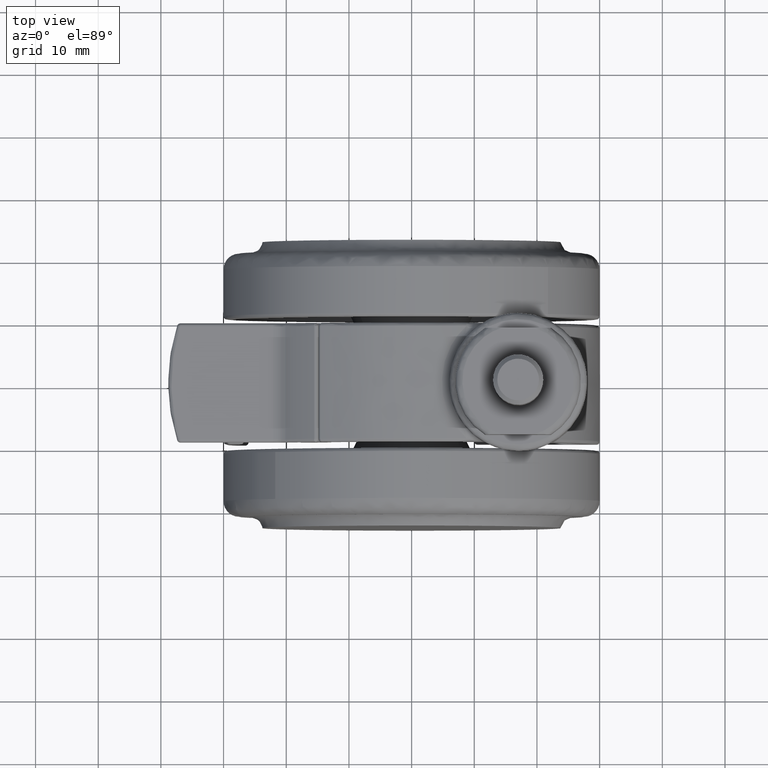
[diagram: clean part render]
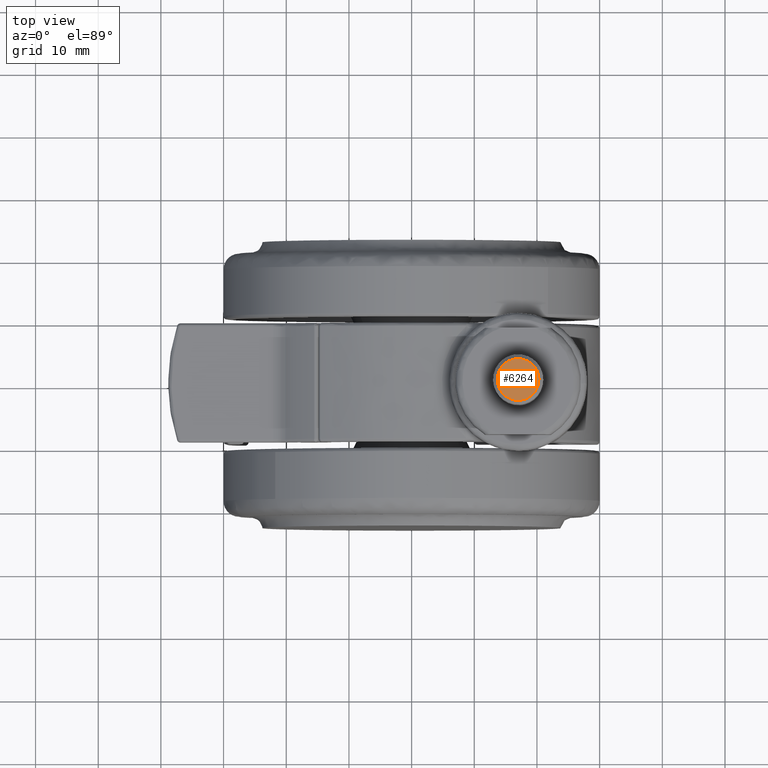
[diagram: same view with one face highlighted and labeled with its STEP entity id]
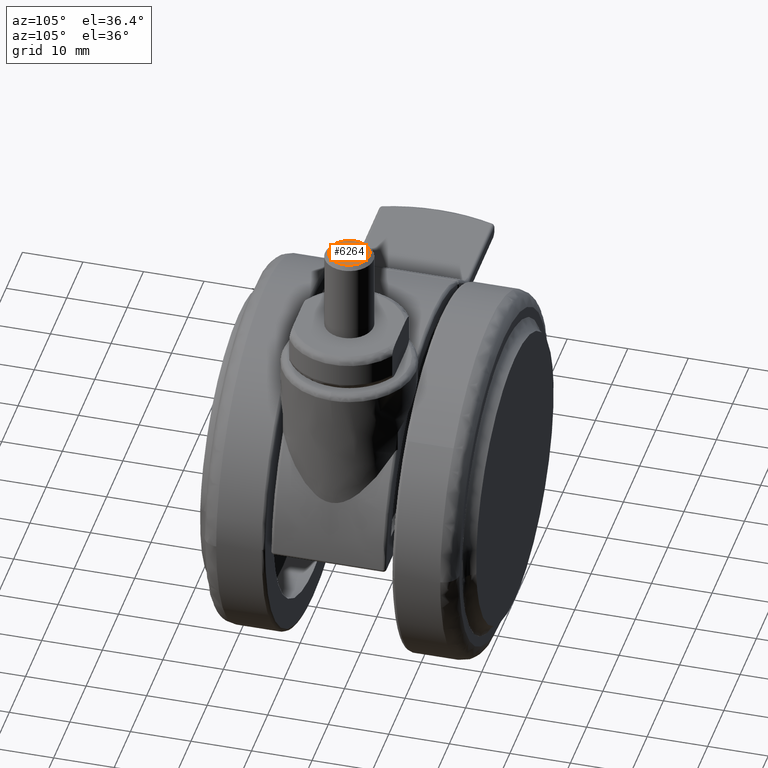
[diagram: same view with one face highlighted and labeled with its STEP entity id]
A machine part, top view. The second image highlights one B-rep face of the part: STEP entity #6264.
A second angle (auxiliary view) of the same face is appended — the face is thin or edge-on in the first view.
In plain terms, the highlighted face is a freeform B-spline surface patch.
Its self-contained STEP definition (entity closure, byte-faithful):
#6193=CARTESIAN_POINT('',(13.344482362883220,-3.655435787324527,52.500000000000000));
#6194=CARTESIAN_POINT('',(20.655517815403218,-3.655435787324527,52.500000000000000));
#6195=CARTESIAN_POINT('',(13.344482362883220,3.655435727895773,52.500000000000000));
#6196=CARTESIAN_POINT('',(20.655517815403218,3.655435727895773,52.500000000000000));
#6197=B_SPLINE_SURFACE_WITH_KNOTS('',1,1,((#6193,#6195),(#6194,#6196)),.UNSPECIFIED.,.F.,.F.,.U.,(2,2),(2,2),(0.0,7.311035452520006),(0.0,7.310871515220300),.UNSPECIFIED.);
#6198=CARTESIAN_POINT('',(17.202894821712441,-3.317301002594804,52.499999999925578));
#6199=VERTEX_POINT('',#6198);
#6200=CARTESIAN_POINT('',(13.676500000000040,2.842171E-014,52.500000000000000));
#6201=VERTEX_POINT('',#6200);
#6202=CARTESIAN_POINT('',(17.202894821712441,-3.317301002594804,52.499999999925571));
#6203=CARTESIAN_POINT('',(17.101542109110031,-3.323500000073146,52.499999999926658));
#6204=CARTESIAN_POINT('',(17.000000000004409,-3.323500000072011,52.499999999927788));
#6205=CARTESIAN_POINT('',(13.676500000002173,-3.323500000034873,52.499999999964999));
#6206=CARTESIAN_POINT('',(13.676500000000040,2.842171E-014,52.500000000000000));
#6214=(BOUNDED_CURVE()B_SPLINE_CURVE(2,(#6202,#6203,#6204,#6205,#6206),.UNSPECIFIED.,.F.,.U.)B_SPLINE_CURVE_WITH_KNOTS((3,2,3),(0.739332962212643,0.750000000000000,1.0),.UNSPECIFIED.)CURVE()GEOMETRIC_REPRESENTATION_ITEM()RATIONAL_B_SPLINE_CURVE((0.976072041610352,0.987502787869025,1.0,0.707106781186547,1.0))REPRESENTATION_ITEM(''));
#6215=EDGE_CURVE('',#6199,#6201,#6214,.T.);
#6216=ORIENTED_EDGE('',*,*,#6215,.F.);
#6217=CARTESIAN_POINT('',(20.323499999999971,2.842171E-014,52.500000000000000));
#6218=VERTEX_POINT('',#6217);
#6219=CARTESIAN_POINT('',(20.323499999999971,2.842171E-014,52.500000000000000));
#6220=CARTESIAN_POINT('',(20.323500000002237,-3.126436612865800,52.499999999962796));
#6221=CARTESIAN_POINT('',(17.202894821712441,-3.317301002594804,52.499999999925571));
#6229=(BOUNDED_CURVE()B_SPLINE_CURVE(2,(#6219,#6220,#6221),.UNSPECIFIED.,.F.,.U.)B_SPLINE_CURVE_WITH_KNOTS((3,3),(0.500000000000000,0.739332962212643),.UNSPECIFIED.)CURVE()GEOMETRIC_REPRESENTATION_ITEM()RATIONAL_B_SPLINE_CURVE((1.0,0.719603993317523,0.976072041610352))REPRESENTATION_ITEM(''));
#6230=EDGE_CURVE('',#6218,#6199,#6229,.T.);
#6231=ORIENTED_EDGE('',*,*,#6230,.F.);
#6232=CARTESIAN_POINT('',(16.797105178287559,3.317301002594860,52.499999999925578));
#6233=VERTEX_POINT('',#6232);
#6234=CARTESIAN_POINT('',(16.797105178287556,3.317301002594860,52.499999999925571));
#6235=CARTESIAN_POINT('',(16.898457890889969,3.323500000073201,52.499999999926651));
#6236=CARTESIAN_POINT('',(16.999999999995602,3.323500000072067,52.499999999927780));
#6237=CARTESIAN_POINT('',(20.323499999997825,3.323500000034929,52.499999999964977));
#6238=CARTESIAN_POINT('',(20.323499999999971,2.842171E-014,52.500000000000000));
#6246=(BOUNDED_CURVE()B_SPLINE_CURVE(2,(#6234,#6235,#6236,#6237,#6238),.UNSPECIFIED.,.F.,.U.)B_SPLINE_CURVE_WITH_KNOTS((3,2,3),(0.239332962212642,0.250000000000000,0.500000000000000),.UNSPECIFIED.)CURVE()GEOMETRIC_REPRESENTATION_ITEM()RATIONAL_B_SPLINE_CURVE((0.976072041610351,0.987502787869024,1.0,0.707106781186547,1.0))REPRESENTATION_ITEM(''));
#6247=EDGE_CURVE('',#6233,#6218,#6246,.T.);
#6248=ORIENTED_EDGE('',*,*,#6247,.F.);
#6249=CARTESIAN_POINT('',(13.676500000000040,2.842171E-014,52.500000000000000));
#6250=CARTESIAN_POINT('',(13.676499999997764,3.126436612865855,52.499999999962789));
#6251=CARTESIAN_POINT('',(16.797105178287559,3.317301002594860,52.499999999925585));
#6259=(BOUNDED_CURVE()B_SPLINE_CURVE(2,(#6249,#6250,#6251),.UNSPECIFIED.,.F.,.U.)B_SPLINE_CURVE_WITH_KNOTS((3,3),(0.0,0.239332962212643),.UNSPECIFIED.)CURVE()GEOMETRIC_REPRESENTATION_ITEM()RATIONAL_B_SPLINE_CURVE((1.0,0.719603993317523,0.976072041610351))REPRESENTATION_ITEM(''));
#6260=EDGE_CURVE('',#6201,#6233,#6259,.T.);
#6261=ORIENTED_EDGE('',*,*,#6260,.F.);
#6262=EDGE_LOOP('',(#6216,#6231,#6248,#6261));
#6263=FACE_OUTER_BOUND('',#6262,.T.);
#6264=ADVANCED_FACE('',(#6263),#6197,.T.);